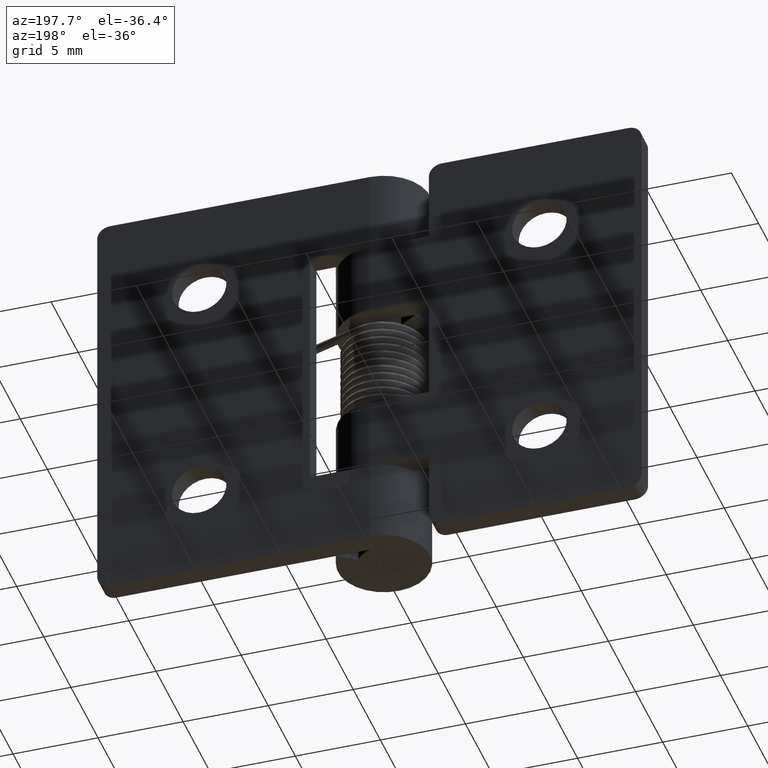
[diagram: clean part render]
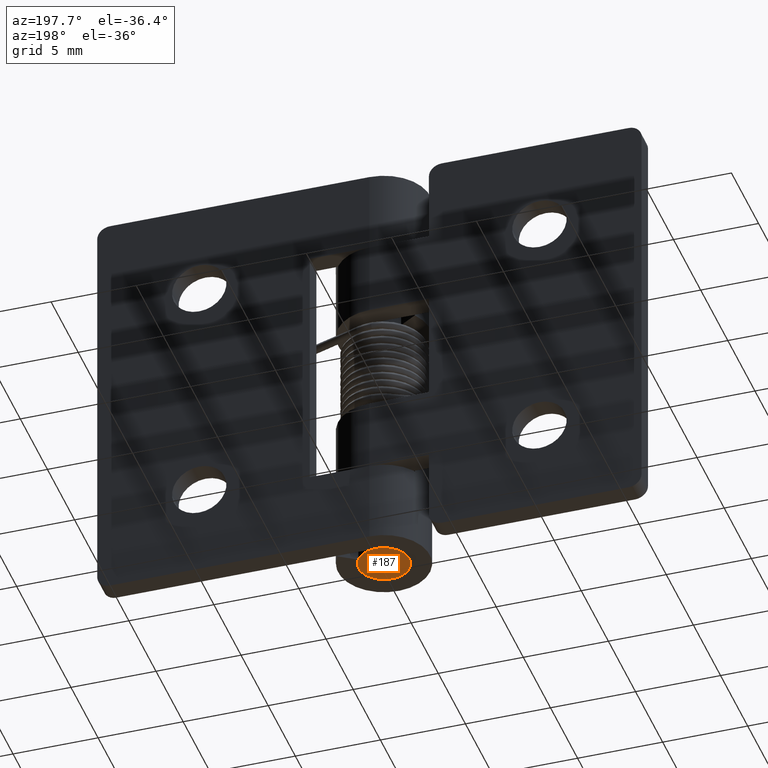
[diagram: same view with one face highlighted and labeled with its STEP entity id]
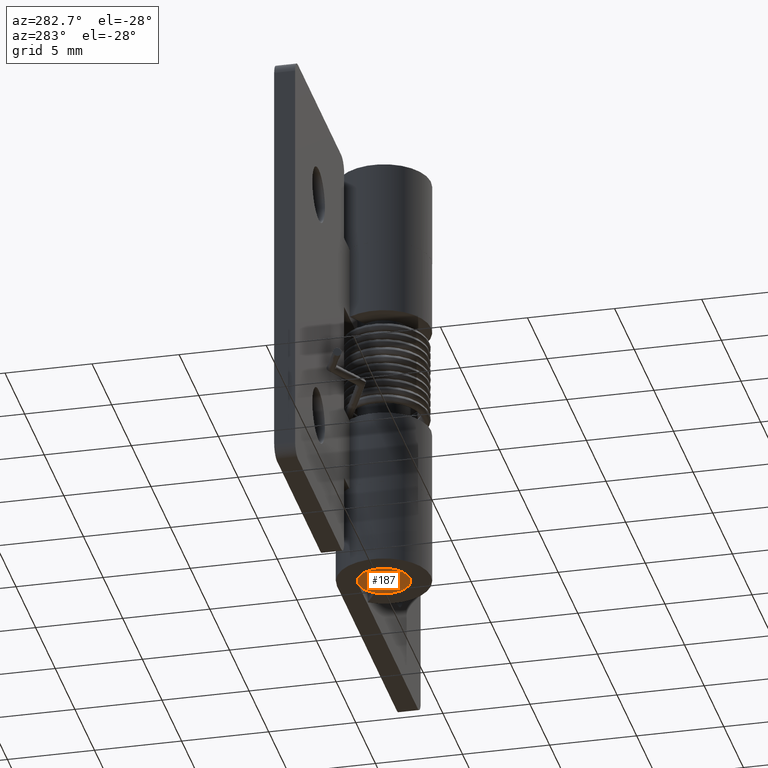
[diagram: same view with one face highlighted and labeled with its STEP entity id]
A machine part, auxiliary view. The second image highlights one B-rep face of the part: STEP entity #187.
A second angle (auxiliary view) of the same face is appended — the face is thin or edge-on in the first view.
In plain terms, the highlighted planar face has unit normal (0, 0, -1).
Its self-contained STEP definition (entity closure, byte-faithful):
#187=ADVANCED_FACE('',(#267),#266,.T.);
#266=PLANE('',#972);
#267=FACE_OUTER_BOUND('',#973,.T.);
#969=CARTESIAN_POINT('',(3.45000000000E+00,-3.11769145362E+00,0.00000000000E+00));
#970=DIRECTION('',(0.00000000000E+00,0.00000000000E+00,-1.00000000000E+00));
#971=DIRECTION('',(-1.00000000000E+00,0.00000000000E+00,0.00000000000E+00));
#972=AXIS2_PLACEMENT_3D('',#969,#970,#971);
#973=EDGE_LOOP('',(#2956,#2957));
#2956=ORIENTED_EDGE('',*,*,#3300,.T.);
#2957=ORIENTED_EDGE('',*,*,#3301,.T.);
#3300=EDGE_CURVE('',#3484,#3485,#3486,.T.);
#3301=EDGE_CURVE('',#3485,#3484,#3492,.T.);
#3484=VERTEX_POINT('',#4622);
#3485=VERTEX_POINT('',#4623);
#3486=CIRCLE('',#4627,1.50000000000E+00);
#3492=CIRCLE('',#4631,1.50000000000E+00);
#4622=CARTESIAN_POINT('',(-1.50000000000E+00,0.00000000000E+00,0.00000000000E+00));
#4623=CARTESIAN_POINT('',(1.50000000000E+00,-7.40148683083E-17,0.00000000000E+00));
#4624=CARTESIAN_POINT('',(0.00000000000E+00,0.00000000000E+00,0.00000000000E+00));
#4625=DIRECTION('',(-0.00000000000E+00,0.00000000000E+00,-1.00000000000E+00));
#4626=DIRECTION('',(-1.00000000000E+00,-1.22460635382E-16,0.00000000000E+00));
#4627=AXIS2_PLACEMENT_3D('',#4624,#4625,#4626);
#4628=CARTESIAN_POINT('',(0.00000000000E+00,0.00000000000E+00,0.00000000000E+00));
#4629=DIRECTION('',(-0.00000000000E+00,0.00000000000E+00,-1.00000000000E+00));
#4630=DIRECTION('',(-1.00000000000E+00,-1.22460635382E-16,0.00000000000E+00));
#4631=AXIS2_PLACEMENT_3D('',#4628,#4629,#4630);